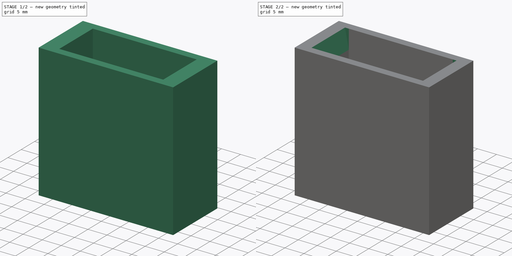
[diagram: build sequence overview — one tinted view per stage of 2, left to right]
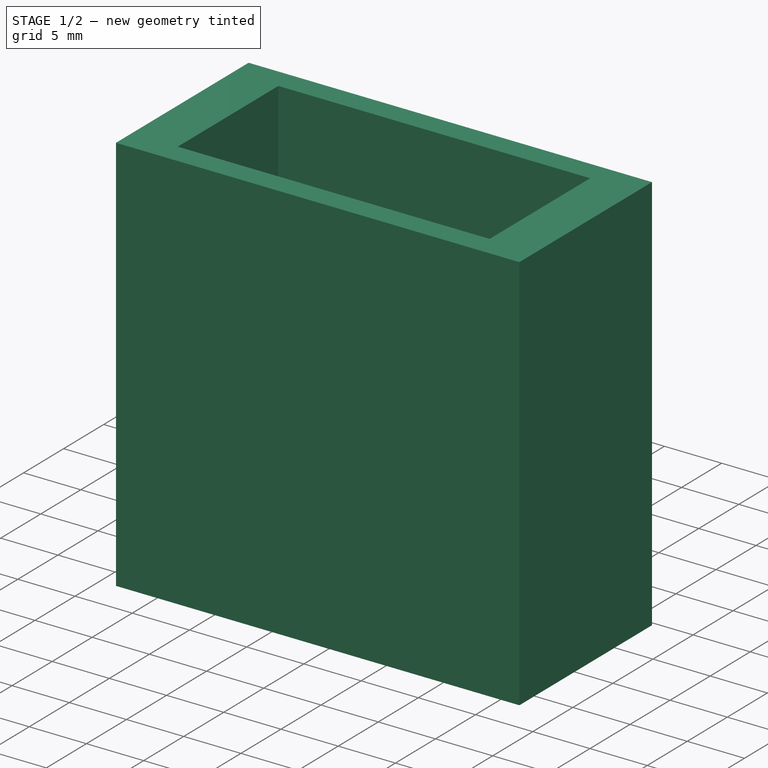
[diagram: stage 1 of 2 — iso view after this stage's code; geometry added in this stage tinted green]
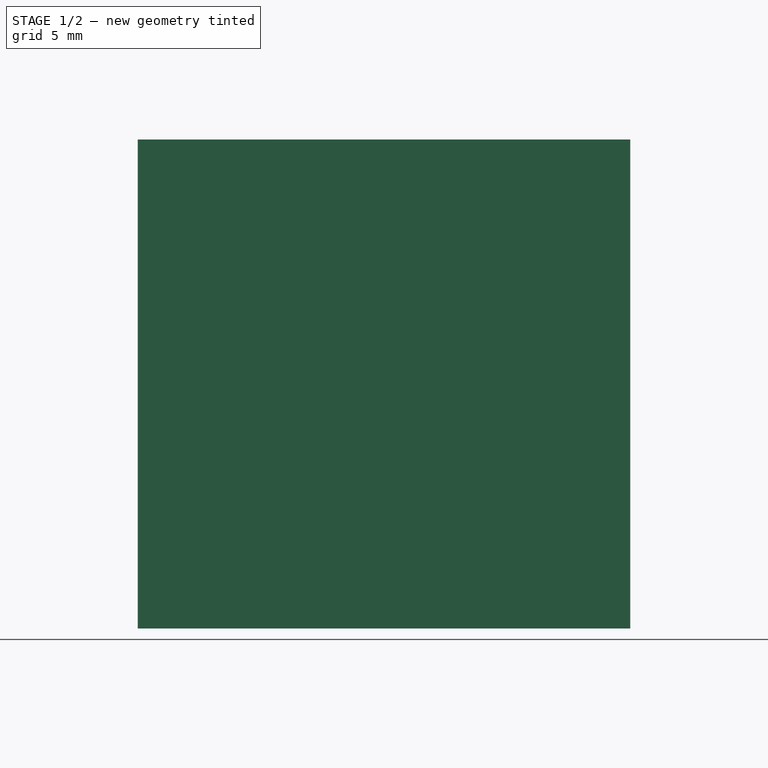
[diagram: stage 1 of 2 — front view after this stage's code; geometry added in this stage tinted green]
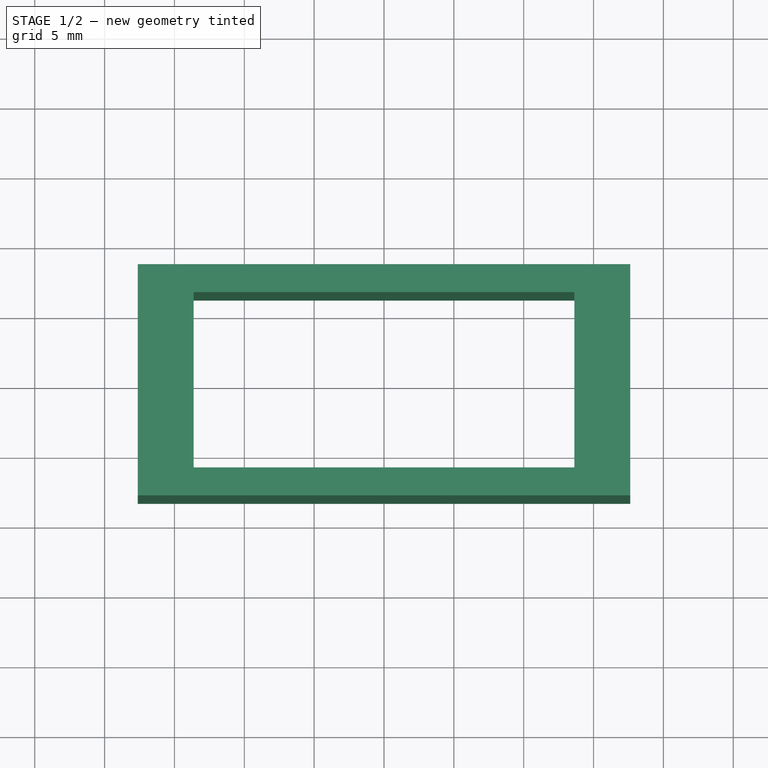
[diagram: stage 1 of 2 — top view after this stage's code; geometry added in this stage tinted green]
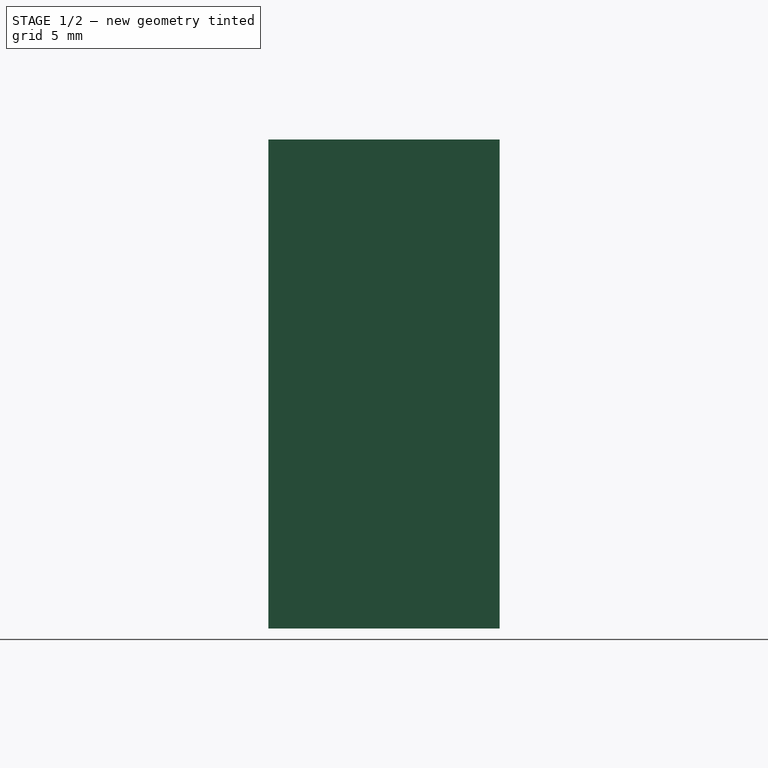
[diagram: stage 1 of 2 — right view after this stage's code; geometry added in this stage tinted green]
FCSTD DOCUMENT  (FreeCAD 0.19R24267 +148 (Git))
Label: outillageSW1500CA_004
License: Public Domain
LicenseURL: http://en.wikipedia.org/wiki/Public_domain
objects: Spreadsheet::Sheet×2, App::Part×2, Part::Feature×1, Sketcher::SketchObject×1, PartDesign::Pad×1, PartDesign::Chamfer×1, PartDesign::Body×1
note: 7 computed .brp shape members not serialized (recipe doc carries the construction recipe); baked Part::Feature solids carry a one-line shape summary decoded from their .brp

FEATURE [Part::Feature] Part__Feature103  label="switch v1"
  Placement = pos=(2.05e-13,0.000115123,-16.12) rot=(0,0,1;3.14159rad)
  shape: bbox 31.08 x 13.95 x 34.35 mm, 56 faces (baked)
FEATURE [Spreadsheet::Sheet] Spreadsheet  label="SW_C1500AT"
  cells = A1=Marque; B1=	ARCOLECTRIC (BULGIN LIMITED); C1=Source Farnell; D1=https://fr.farnell.com/arcolectric/c1510ataaa/interrupteur-a-bascule-spdt-noir/dp/150550; A2=trouLargeur; B2(trouLargeur)=11.55; A3=trouLongeur; B3(trouLongeur)=28.25
FEATURE [App::Part] fullAss_v47  label="switch"
  Group = -> [Part__Feature103,Spreadsheet]
  Origin = -> Origin039
FEATURE [Sketcher::SketchObject] Sketch
  FullyConstrained = true
  MapMode = 5
  Support = -> [XY_Plane040]
  expr: Constraints[9] = <<SW_C1500AT>>.trouLongeur - <<outSW_sp>>.retrait
  expr: Constraints[10] = <<SW_C1500AT>>.trouLargeur + <<outSW_sp>>.largJeu
  expr: Constraints[20] = <<outSW_sp>>.largEp
  expr: Constraints[21] = <<outSW_sp>>.ep
  sketch-geometry (8):
    g0: LineSegment StartX=-13.625 StartY=6.275 StartZ=0 EndX=13.625 EndY=6.275 EndZ=0
    g1: LineSegment StartX=13.625 StartY=6.275 StartZ=0 EndX=13.625 EndY=-6.275 EndZ=0
    g2: LineSegment StartX=13.625 StartY=-6.275 StartZ=0 EndX=-13.625 EndY=-6.275 EndZ=0
    g3: LineSegment StartX=-13.625 StartY=-6.275 StartZ=0 EndX=-13.625 EndY=6.275 EndZ=0
    g4: LineSegment StartX=-17.625 StartY=8.275 StartZ=0 EndX=17.625 EndY=8.275 EndZ=0
    g5: LineSegment StartX=17.625 StartY=8.275 StartZ=0 EndX=17.625 EndY=-8.275 EndZ=0
    g6: LineSegment StartX=17.625 StartY=-8.275 StartZ=0 EndX=-17.625 EndY=-8.275 EndZ=0
    g7: LineSegment StartX=-17.625 StartY=-8.275 StartZ=0 EndX=-17.625 EndY=8.275 EndZ=0
  constraints (22):
    c: Coincident(g0,g1)
    c: Coincident(g1,g2)
    c: Coincident(g2,g3)
    c: Coincident(g3,g0)
    c: Horizontal(g0)
    c: Horizontal(g2)
    c: Vertical(g1)
    c: Vertical(g3)
    c: Symmetric(g0,g1,g-1)
    c: DistanceX(g0,g0) = 27.25
    c: DistanceY(g1,g1) = 12.55
    c: Coincident(g4,g5)
    c: Coincident(g5,g6)
    c: Coincident(g6,g7)
    c: Coincident(g7,g4)
    c: Horizontal(g4)
    c: Horizontal(g6)
    c: Vertical(g5)
    c: Vertical(g7)
    c: Symmetric(g5,g4,g-1)
    c: DistanceY(g6,g2) = 2
    c: DistanceX(g6,g2) = 4
FEATURE [Spreadsheet::Sheet] Spreadsheet001  label="outSW_sp"
  cells = A1=ep; B1(ep)=4; A2=retrait; B2(retrait)=1; A3=largJeu; B3(largJeu)=1; A4=largEp; B4(largEp)=2
FEATURE [PartDesign::Pad] Pad
  Direction = (1,1,1)
  Length = 35
  Length2 = 100
  Profile = -> Sketch
  Reversed = true
  Type = 0
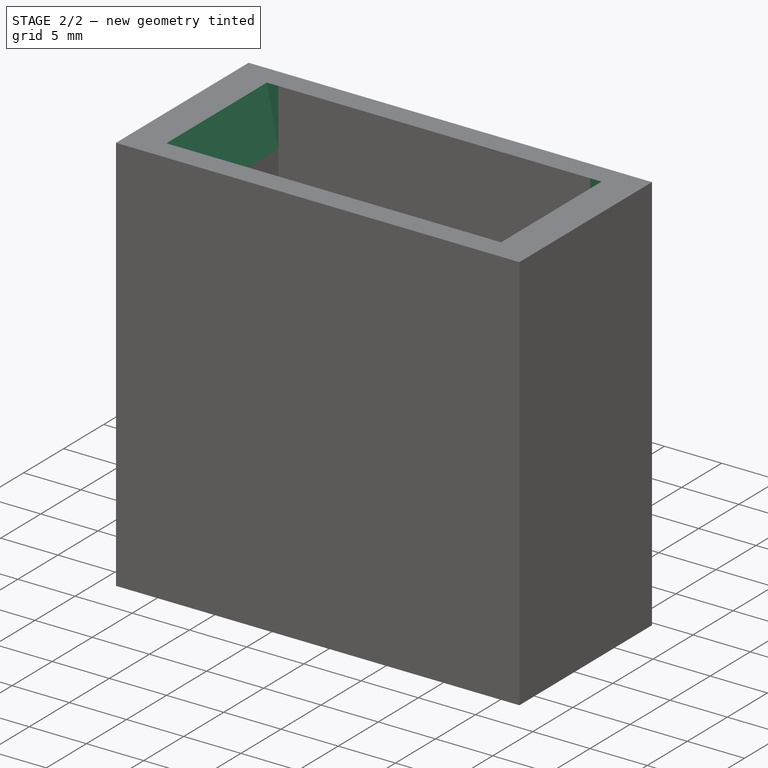
[diagram: stage 2 of 2 — iso view after this stage's code; geometry added in this stage tinted green]
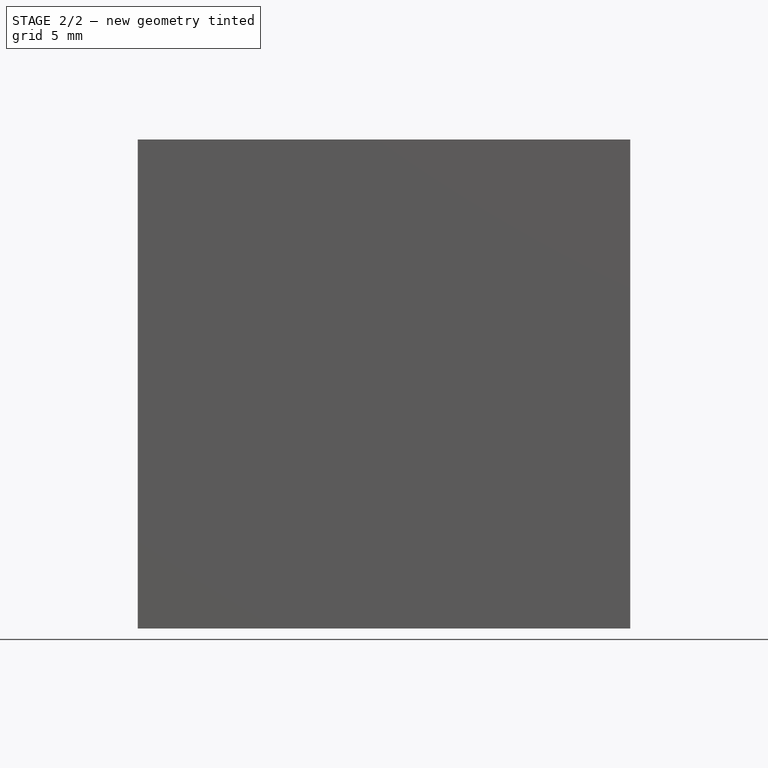
[diagram: stage 2 of 2 — front view after this stage's code; geometry added in this stage tinted green]
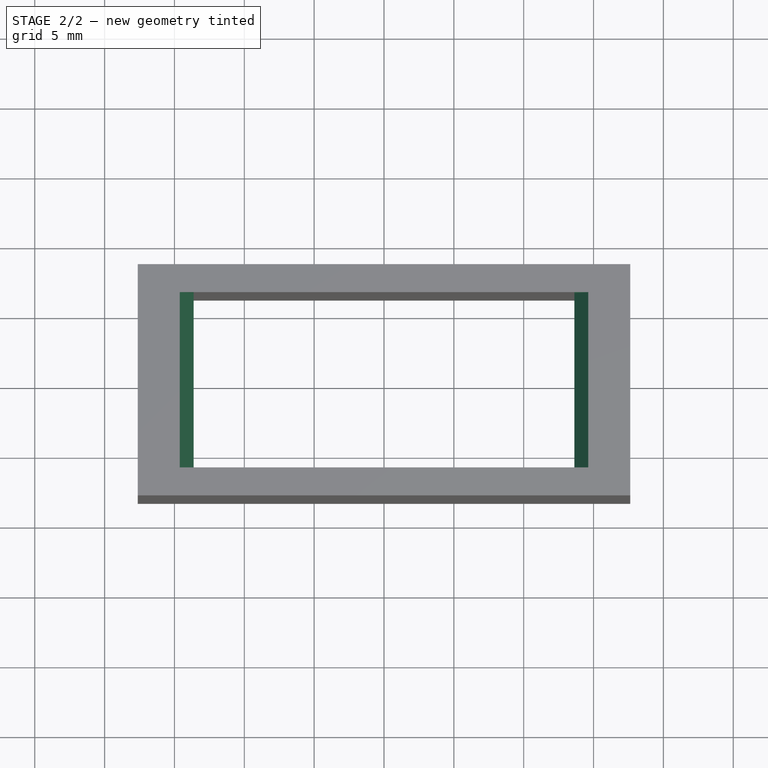
[diagram: stage 2 of 2 — top view after this stage's code; geometry added in this stage tinted green]
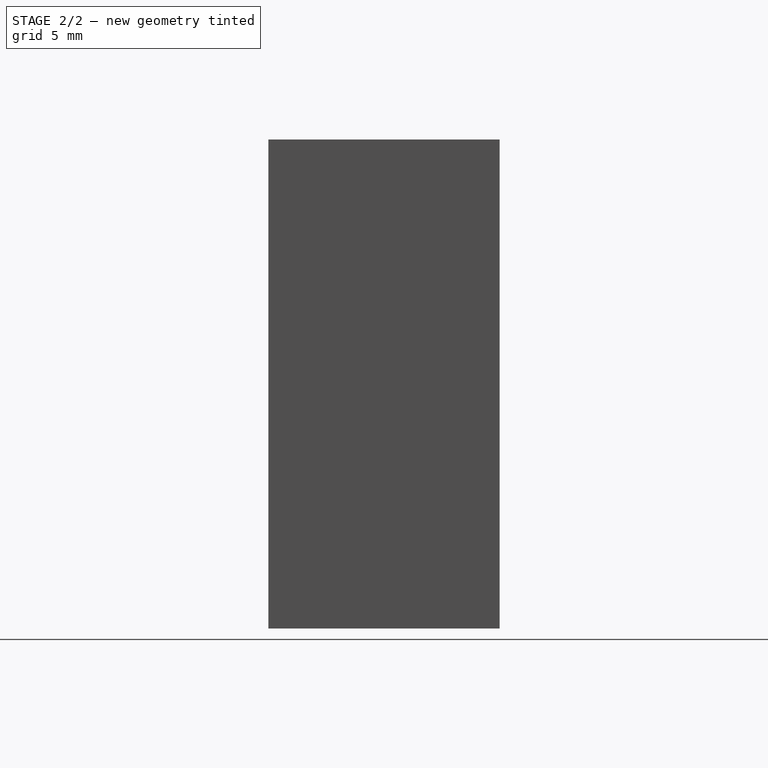
[diagram: stage 2 of 2 — right view after this stage's code; geometry added in this stage tinted green]
FEATURE [PartDesign::Chamfer] Chamfer
  Angle = 22
  Base = -> Pad [Edge21,Edge15]
  BaseFeature = -> Pad
  ChamferType = 1
  FlipDirection = false
  Size = 5
  Size2 = 1
  SupportTransform = false
FEATURE [PartDesign::Body] Body  label="outSW1500"
  Group = -> [Sketch,Pad,Chamfer]
  Origin = -> Origin040
  Tip = -> Chamfer
FEATURE [App::Part] Part  label="outillageSW1500"
  Group = -> [Body,Spreadsheet001]
  Origin = -> Origin
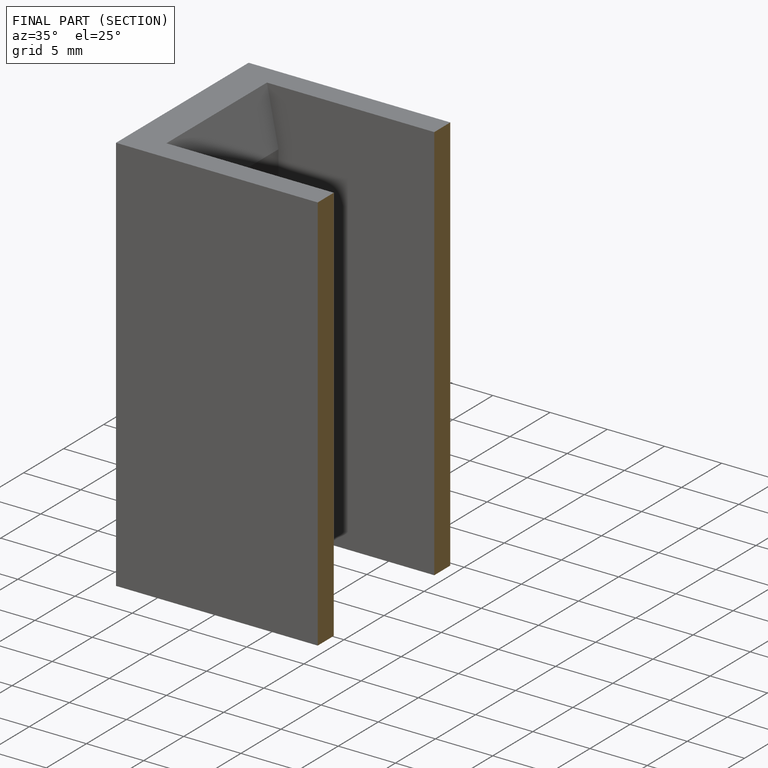
[diagram: finished part — half-section view (interior)]
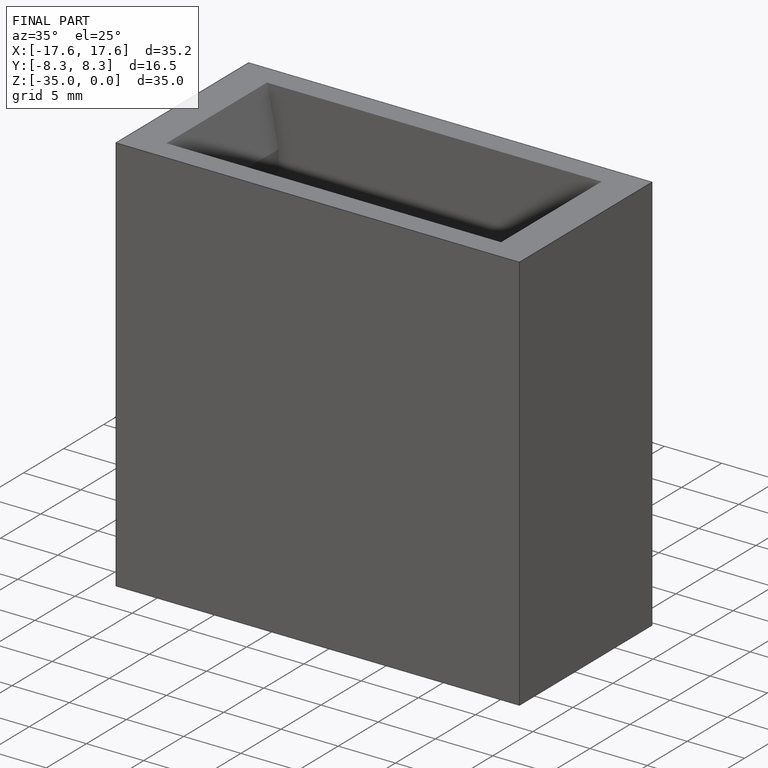
[diagram: finished part — iso view with bounding-box wireframe]
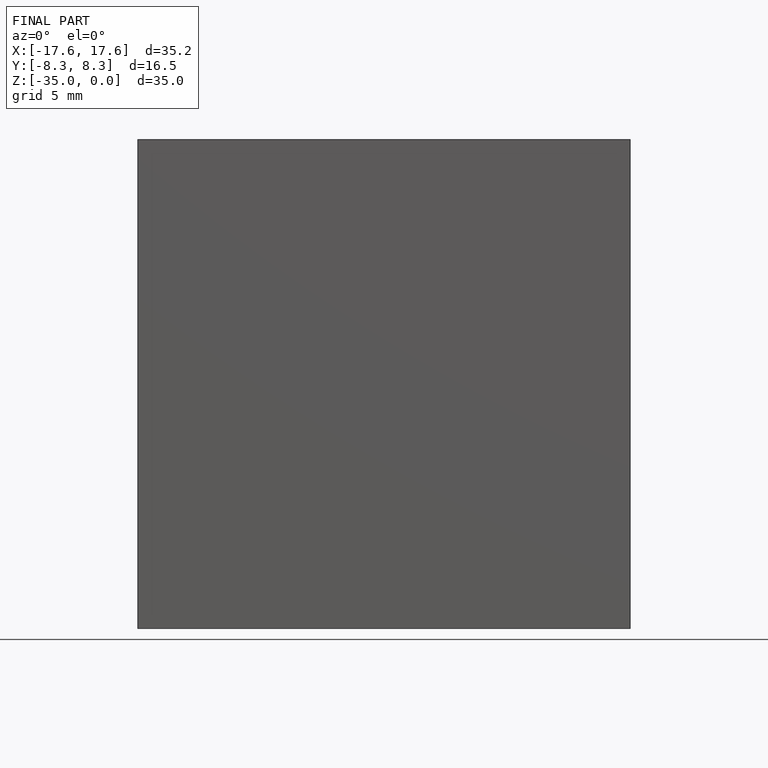
[diagram: finished part — front view with bounding-box wireframe]
